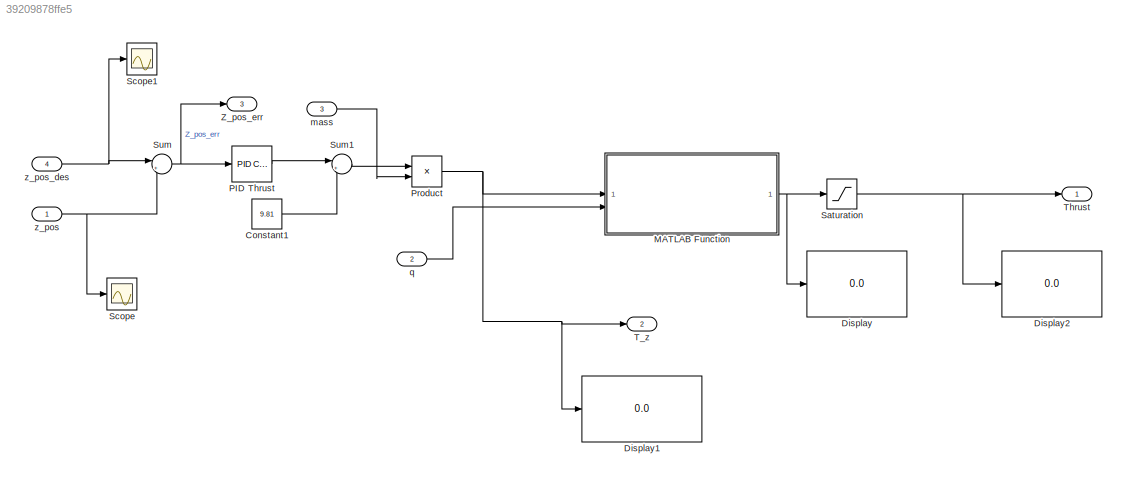
MODEL slx_39209878ffe5
KIND model
CONFIG AbsTol = auto
CONFIG EnableMultiTasking = off
CONFIG FixedStep = 0.001
CONFIG MaxStep = auto
CONFIG MinStep = auto
CONFIG RelTol = 1e-3
CONFIG SampleTimeConstraint = Unconstrained
CONFIG SolverName = FixedStepAuto
CONFIG StartTime = 0.0
CONFIG StopTime = 10.0
BLOCK [Constant] Constant1
  Value = 9.81
BLOCK [Display] Display
  Decimation = 1
BLOCK [Display] Display1
  Decimation = 1
BLOCK [Display] Display2
  Decimation = 1
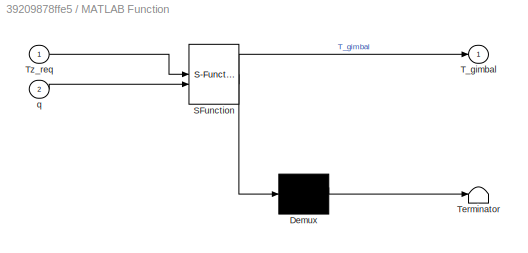
BLOCK [SubSystem] MATLAB Function
  ErrorFcn = Stateflow.Translate.translate
  PermitHierarchicalResolution = ExplicitOnly
  SFBlockType = MATLAB Function
  TreatAsAtomicUnit = on
BLOCK [Demux] MATLAB Function/ Demux 
  Outputs = 1
BLOCK [S-Function] MATLAB Function/ SFunction 
  EnableBusSupport = off
  FunctionName = sf_sfun
  PortCounts = [2 2]
  SFcnIsStateOwnerBlock = off
  SFunctionDeploymentMode = off
  Tag = Stateflow S-Function 2
BLOCK [Terminator] MATLAB Function/ Terminator 
BLOCK [Outport] MATLAB Function/T_gimbal
BLOCK [Inport] MATLAB Function/Tz_req
BLOCK [Inport] MATLAB Function/q
  Port = 2
BLOCK [Reference] PID Thrust  REF=slpidlib/PID Controller
  LibrarySourceBlock = simulink/Continuous/PID Controller
  SourceBlock = slpidlib/PID Controller
  SourceType = PID 1dof
BLOCK [Product] Product
BLOCK [Saturate] Saturation
  LowerLimit = 1
  UpperLimit = 20
BLOCK [Scope] Scope
  ActiveDisplayYMaximum = 6.4196531338249665
  ActiveDisplayYMinimum = -0.713307378015125
  Floating = off
  GraphicalSettings = {"AxesScalingProperties":{"AlignXAxis":"Center","AlignYAxis":"Center","AutoScaleXAxisLimits":false,"AxesScaling":"Manual","AxesScalingNumUpdates":10,"ExpandOnly":true,"ScaleAxesLimitsAtStop":false,"XAxisDataRange":100,"YAxisDataRange":80},"DisplayProperties":{"ColorOrder":["auto","auto","auto","auto","auto","auto","auto","auto","auto","auto","auto","auto","auto","auto","auto","auto","auto","auto",...<+2002ch>
  MultipleDisplayCache = [{"MaxYLimMag":6.4196531338249665,"MaxYLimReal":6.4196531338249665,"MinYLimMag":0,"MinYLimReal":-0.713307378015125,"PlotAsMagnitudePhase":false,"ShowGrid":true,"ShowLegend":false,"Title":"%<SignalLabel>","YLabel":""}]
  NumInputPorts = 1
  ScopeFrameLocation = window
  WasSavedAsWebScope = on
  WindowPosition = [488.000000,222.000000,560.000000,420.000000,]
BLOCK [Scope] Scope1
  ActiveDisplayYMaximum = 5.625
  ActiveDisplayYMinimum = -0.625
  DataLoggingVariableName = ScopeData1
  Floating = off
  GraphicalSettings = {"GraphicalSettings":{"LegacySettings":true,"Style":{"Style":{"AxesColor":"[0 0 0]","ChannelNames":[""],"ColorOrder":"[1 0.909803921568627 0.392156862745098;0.149019607843137 0.549019607843137 0.866666666666667;0.96078431372549 0.466666666666667 0.16078431372549;0.286274509803922 0.858823529411765 0.250980392156863;0.752941176470588 0.36078431372549 0.984313725490196;0.423529411764706 0.9568627450...<+432ch>
  MultipleDisplayCache = [{"MaxYLimMag":5.625,"MaxYLimReal":5.625,"MinYLimMag":0,"MinYLimReal":-0.625,"PlotAsMagnitudePhase":false,"ShowGrid":true,"ShowLegend":false,"Title":"%<SignalLabel>","YLabel":""}]
  NumInputPorts = 1
  WasSavedAsWebScope = on
  WindowPosition = [1000 509.666666666667 560 420]
BLOCK [Sum] Sum
  Inputs = |+-
BLOCK [Sum] Sum1
  Inputs = |++
BLOCK [Outport] T_z
  Port = 2
BLOCK [Outport] Thrust
BLOCK [Outport] Z_pos_err
  Port = 3
BLOCK [Inport] mass
  Port = 3
BLOCK [Inport] q
  Port = 2
  PortDimensions = 4
BLOCK [Inport] z_pos
BLOCK [Inport] z_pos_des
  Port = 4
  PortDimensions = 1
LINE Constant1:1 -> Sum1:2
NET MATLAB Function:1 -> Display:1, Saturation:1
LINE PID Thrust:1 -> Sum1:1
NET Product:1 -> Display1:1, MATLAB Function:1, T_z:1
NET Saturation:1 -> Display2:1, Thrust:1
LINE Sum1:1 -> Product:1
NET Sum:1 -> PID Thrust:1, Z_pos_err:1
LINE mass:1 -> Product:2
LINE q:1 -> MATLAB Function:2
NET z_pos:1 -> Scope:1, Sum:2
NET z_pos_des:1 -> Scope1:1, Sum:1
note: NET lines group one-source signal fan-out (src -> all destinations, sorted); 1:1 wires keep LINE
CHART MATLAB Function states=1 transitions=1
  STATE_LABEL 'eML_blk_kernel()'
  STATE_LABEL 'SCRIPT:\nfunction T_gimbal = gimbal_thrust_from_vertical(Tz_req, q)\n% q = [qw qx qy qz], body->world, normalized\n\nqx = q(2);\nqy = q(3);\n\ncosTilt = 1 - 2*(qx^2 + qy^2);   % = R33\n\n% Protect against near-90deg tilt (cos -> 0)\ncosMin = 0.1;                    % choose (e.g., limits to ~84 deg)\ncosEff = max(cosTilt, cosMin);\n\nT_gimbal = Tz_req / cosEff;\n'
CHART  states=0 transitions=0
